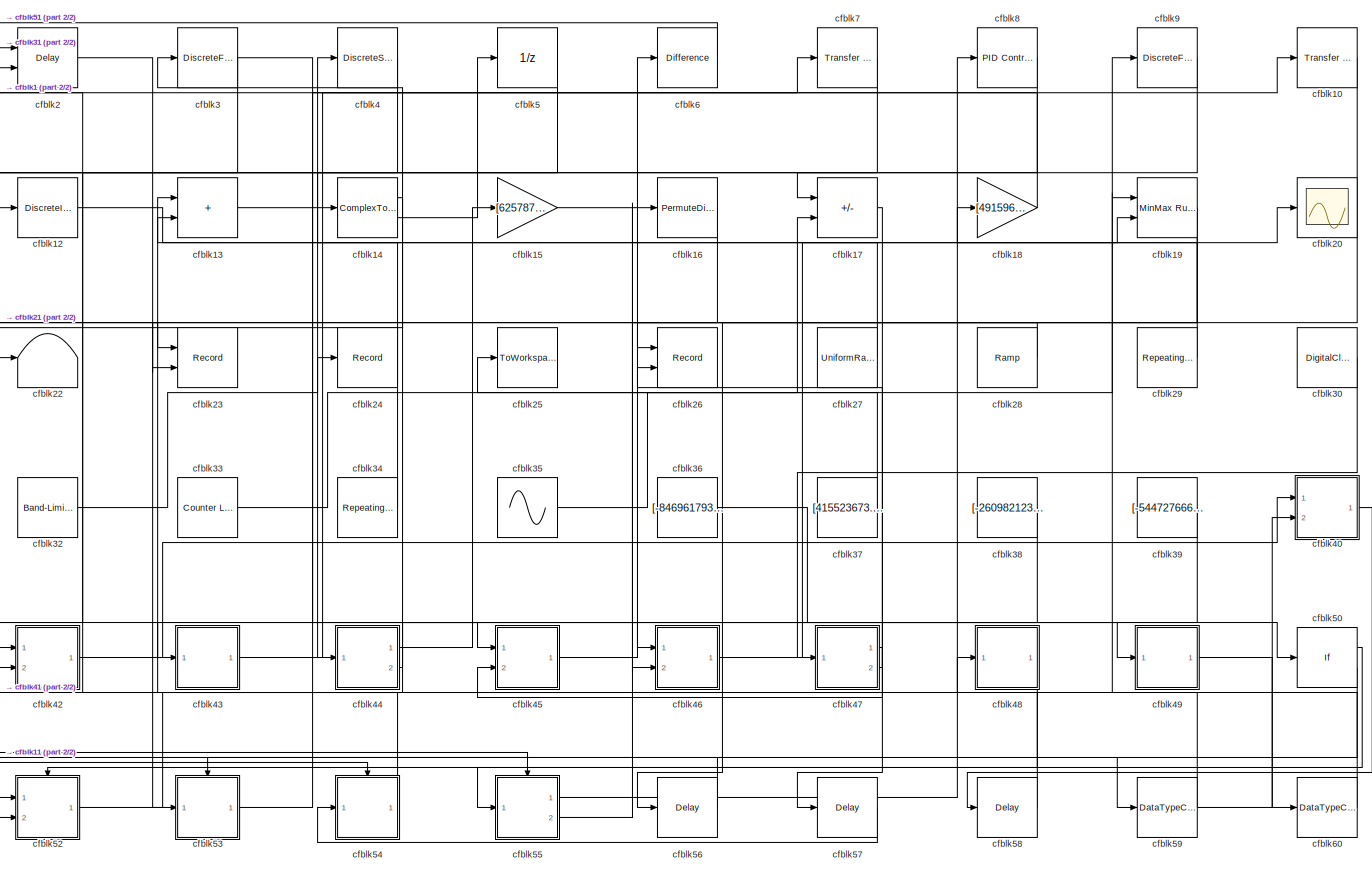
[diagram: root canvas - part 1/2, most of the canvas]
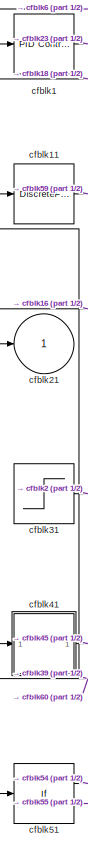
[diagram: root canvas - part 2/2, left side, full height]
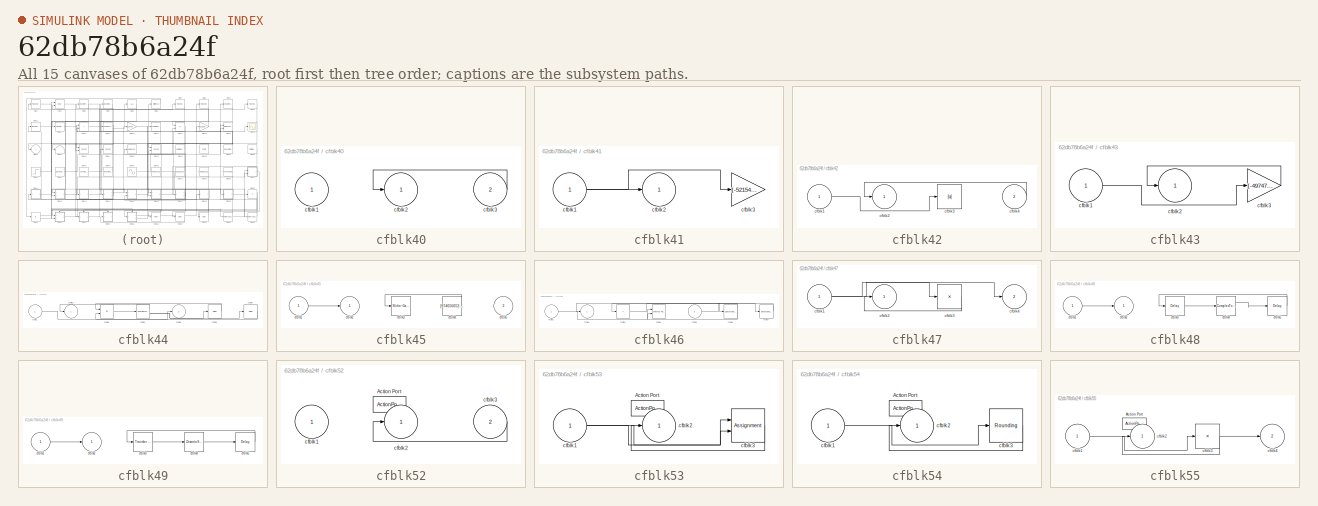
[diagram: thumbnail index - all 15 canvases of the model, root first then tree order]
MODEL slx_62db78b6a24f
KIND model
CONFIG AbsTol = auto
CONFIG EnableMultiTasking = off
CONFIG FixedStep = auto
CONFIG MaxStep = auto
CONFIG MinStep = auto
CONFIG RelTol = 1e-3
CONFIG SampleTimeConstraint = Unconstrained
CONFIG SolverName = VariableStepAuto
CONFIG StartTime = 0.0
CONFIG StopTime = 10.0
BLOCK [Reference] cfblk1  REF=slpidlib/PID Controller
  Ports = [1, 1]
  SourceBlock = slpidlib/PID Controller
  SourceProductBaseCode = SL
  SourceType = PID 1dof
BLOCK [Reference] cfblk10  REF=simulink/Discrete/Transfer Fcn
Lead or Lag
  Ports = [1, 1]
  SourceBlock = simulink/Discrete/Transfer Fcn\nLead or Lag
  SourceProductBaseCode = SL
  SourceType = Lead or Lag Compensator
BLOCK [DiscreteFir] cfblk11
  InputPortMap = u0
  OutputPortMap = o0
  Ports = [1, 1]
  SampleTime = 1
BLOCK [DiscreteIntegrator] cfblk12
  ICPrevOutput = DiscIntNeverNeededParam
  ICPrevScaledInput = DiscIntNeverNeededParam
  InitialConditionSetting = Auto
  Ports = [1, 1]
BLOCK [Sum] cfblk13
  IconShape = rectangular
  Ports = [2, 1]
BLOCK [ComplexToRealImag] cfblk14
  Ports = [1, 2]
BLOCK [Gain] cfblk15
  Gain = [625787040.969806]
BLOCK [PermuteDimensions] cfblk16
BLOCK [Sum] cfblk17
  IconShape = rectangular
  Inputs = +-
  Ports = [2, 1]
BLOCK [Gain] cfblk18
  Gain = [491596973.090959]
BLOCK [Reference] cfblk19  REF=simulink/Math
Operations/MinMax
Running
Resettable
  Ports = [2, 1]
  SourceBlock = simulink/Math\nOperations/MinMax\nRunning\nResettable
  SourceProductBaseCode = SL
  SourceType = MinMax Running Resettable
BLOCK [Delay] cfblk2
  DelayLengthSource = Input port
  InputPortMap = u0,p1
  Ports = [2, 1]
  SampleTime = 1
BLOCK [Scope] cfblk20
  Floating = off
  NumInputPorts = 1
  Ports = [1]
BLOCK [Outport] cfblk21
BLOCK [Terminator] cfblk22
BLOCK [Record] cfblk23
  CompatibilityTag = XY
  FileSettingsInternal = {"entries":[{"content":{"excelSettings":{"content":{},"type":"Streamout.ExcelSettings"}},"type":"Streamout.FileSettingStorage","uuid":"e433c555-253d-4f97-8293-8df6897d1aa0"}],"packageUris":["http://schema.mathworks.com/mf0/streamout_blocks/R2020a"],"version":"1.0"}
  Layout = [1 1]
  Ports = [2]
  SignalsInternal = {"entries":[{"content":{"signals":[{"content":{"blockPath":["sampleModel233/cfblk23"],"channel":[],"dimensions":[1],"domain":"sampleModel233/cfblk23","lineColor":"#a2142f","plots":[1],"port":1,"sid":[""],"signalID":9202,"signalName":"cfblk1"},"type":"RecordBlkView.Signal","uuid":"cc64b0a1-a71a-4532-a88e-b589344ca991"},{"content":{"blockPath":["sampleModel233/cfblk23"],"channel":[],"dimensions":[1]...<+382ch>
  VisualizationBindings = {"xyplotplugin":{"info":[{"series":[{"bindingParametersList":[{"parameter":"X-Axis","signalID":9202,"signalName":"cfblk1"},{"parameter":"Y-Axis","signalID":9206,"signalName":"cfblk10"}],"seriesID":50401}],"subplotID":1}]}}
BLOCK [Record] cfblk24
  FileSettingsInternal = {"entries":[{"content":{"excelSettings":{"content":{},"type":"Streamout.ExcelSettings"}},"type":"Streamout.FileSettingStorage","uuid":"70fc0ae0-eaa1-45bd-bad8-642bd3898e6d"}],"packageUris":["http://schema.mathworks.com/mf0/streamout_blocks/R2020a"],"version":"1.0"}
  Ports = [1]
  SignalsInternal = {"entries":[{"content":{"signals":[{"content":{"blockPath":["sampleModel233/cfblk24"],"channel":[],"dimensions":[1],"domain":"sampleModel233/cfblk24","lineColor":"#139fff","plots":[1],"port":1,"sid":[""],"signalID":9210,"signalName":"cfblk32"},"type":"RecordBlkView.Signal","uuid":"13c7f2aa-63d0-4c70-a1a7-97bc0ddb1392"}]},"type":"RecordBlkView.InputSignals","uuid":"2fd97512-d4e6-46da-8c1d-3fc5dd045...<+97ch>
  VisualizationBindings = {"sparklinesplugin":{"info":[{"bindingParametersList":[],"subplotID":1}]}}
BLOCK [ToWorkspace] cfblk25
  FixptAsFi = on
  MaxDataPoints = inf
  Ports = [1]
  SampleTime = -1
  SaveFormat = Timeseries
  VariableName = fxwrvvi
BLOCK [Record] cfblk26
  CompatibilityTag = XY
  FileSettingsInternal = {"entries":[{"content":{"excelSettings":{"content":{},"type":"Streamout.ExcelSettings"}},"type":"Streamout.FileSettingStorage","uuid":"40fa8434-3017-4f19-81d4-f6b42852243f"}],"packageUris":["http://schema.mathworks.com/mf0/streamout_blocks/R2020a"],"version":"1.0"}
  Layout = [1 1]
  Ports = [2]
  SignalsInternal = {"entries":[{"content":{"signals":[{"content":{"blockPath":["sampleModel233/cfblk26"],"channel":[],"dimensions":[1],"domain":"sampleModel233/cfblk26","lineColor":"#a2142f","plots":[1],"port":1,"sid":[""],"signalID":9194,"signalName":"cfblk28"},"type":"RecordBlkView.Signal","uuid":"12f54125-0b3f-4167-9e98-b6753dddff8c"},{"content":{"blockPath":["sampleModel233/cfblk26"],"channel":[],"dimensions":[1...<+385ch>
  VisualizationBindings = {"xyplotplugin":{"info":[{"series":[{"bindingParametersList":[{"parameter":"X-Axis","signalID":9194,"signalName":"cfblk28"},{"parameter":"Y-Axis","signalID":9198,"signalName":"cfblk47:2"}],"seriesID":20120}],"subplotID":1}]}}
BLOCK [UniformRandomNumber] cfblk27
  Maximum = [7164626324.547557]
  Minimum = [-4695507842.631408]
  SampleTime = 0.1
  Seed = [49075245.000000]
BLOCK [Reference] cfblk28  REF=simulink/Sources/Ramp
  Ports = [0, 1]
  SourceBlock = simulink/Sources/Ramp
  SourceProductBaseCode = SL
  SourceType = Ramp
BLOCK [Reference] cfblk29  REF=simulink/Sources/Repeating
Sequence
Interpolated
  Ports = [0, 1]
  SourceBlock = simulink/Sources/Repeating\nSequence\nInterpolated
  SourceProductBaseCode = SL
  SourceType = Repeating Sequence Interpolated
BLOCK [DiscreteFilter] cfblk3
  InputPortMap = u0
  Ports = [1, 1]
  SampleTime = 1
BLOCK [DigitalClock] cfblk30
BLOCK [Step] cfblk31
  After = [146956045.634263]
  Before = [-923331049.645190]
  SampleTime = 0
  Time = [5.000000]
BLOCK [Reference] cfblk32  REF=simulink/Sources/Band-Limited
White Noise
  Ports = [0, 1]
  SourceBlock = simulink/Sources/Band-Limited\nWhite Noise
  SourceProductBaseCode = SL
  SourceType = Band-Limited White Noise.
BLOCK [Reference] cfblk33  REF=simulink/Sources/Counter
Limited
  Ports = [0, 1]
  SourceBlock = simulink/Sources/Counter\nLimited
  SourceProductBaseCode = SL
  SourceType = Counter Limited
BLOCK [Reference] cfblk34  REF=simulink/Sources/Repeating
Sequence
  Ports = [0, 1]
  SourceBlock = simulink/Sources/Repeating\nSequence
  SourceProductBaseCode = SL
  SourceType = Repeating table
BLOCK [Sin] cfblk35
  Amplitude = [-571808846.141234]
  Bias = [-474539122.793349]
  Ports = [0, 1]
  SampleTime = 0
BLOCK [Constant] cfblk36
  SampleTime = 1
  Value = [-846961793.336997]
BLOCK [Constant] cfblk37
  SampleTime = 1
  Value = [415523673.349520]
BLOCK [Constant] cfblk38
  SampleTime = 1
  Value = [-260982123.016023]
BLOCK [Constant] cfblk39
  SampleTime = 1
  Value = [-544727666.835059]
BLOCK [DiscreteStateSpace] cfblk4
BLOCK [SubSystem] cfblk40
  Ports = [2, 1]
  RequestExecContextInheritance = off
BLOCK [Inport] cfblk40/cfblk1
BLOCK [Outport] cfblk40/cfblk2
BLOCK [Inport] cfblk40/cfblk3
  Port = 2
BLOCK [SubSystem] cfblk41
  Ports = [1, 1]
  RequestExecContextInheritance = off
BLOCK [Inport] cfblk41/cfblk1
BLOCK [Outport] cfblk41/cfblk2
BLOCK [Gain] cfblk41/cfblk3
  Gain = [-52154582.022978]
BLOCK [SubSystem] cfblk42
  Ports = [2, 1]
  RequestExecContextInheritance = off
BLOCK [Inport] cfblk42/cfblk1
BLOCK [Outport] cfblk42/cfblk2
BLOCK [Abs] cfblk42/cfblk3
  SaturateOnIntegerOverflow = off
BLOCK [Inport] cfblk42/cfblk4
  Port = 2
BLOCK [SubSystem] cfblk43
  Ports = [1, 1]
  RequestExecContextInheritance = off
BLOCK [Inport] cfblk43/cfblk1
BLOCK [Outport] cfblk43/cfblk2
BLOCK [Gain] cfblk43/cfblk3
  Gain = [-497471143.273681]
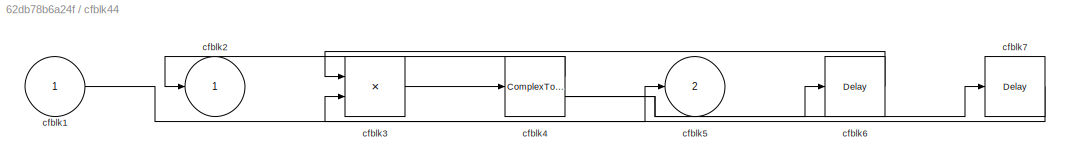
BLOCK [SubSystem] cfblk44
  Ports = [1, 2]
  RequestExecContextInheritance = off
BLOCK [Inport] cfblk44/cfblk1
BLOCK [Outport] cfblk44/cfblk2
BLOCK [Product] cfblk44/cfblk3
  Inputs = **
  Ports = [2, 1]
BLOCK [ComplexToMagnitudeAngle] cfblk44/cfblk4
  Ports = [1, 2]
BLOCK [Outport] cfblk44/cfblk5
  Port = 2
BLOCK [Delay] cfblk44/cfblk6
  InputPortMap = u0
  Ports = [1, 1]
  SampleTime = 1
BLOCK [Delay] cfblk44/cfblk7
  InputPortMap = u0
  Ports = [1, 1]
  SampleTime = 1
BLOCK [SubSystem] cfblk45
  Ports = [2, 1]
  RequestExecContextInheritance = off
BLOCK [Inport] cfblk45/cfblk1
BLOCK [Outport] cfblk45/cfblk2
BLOCK [Reference] cfblk45/cfblk3  REF=simulink/Math
Operations/Slider
Gain
  Ports = [1, 1]
  SourceBlock = simulink/Math\nOperations/Slider\nGain
  SourceProductBaseCode = SL
  SourceType = Slider Gain
BLOCK [Constant] cfblk45/cfblk4
  SampleTime = 1
  Value = [974650653.055199]
BLOCK [Inport] cfblk45/cfblk5
  Port = 2
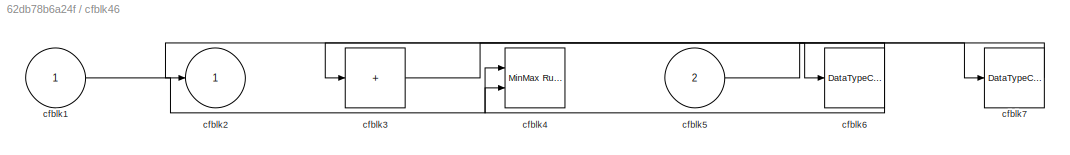
BLOCK [SubSystem] cfblk46
  Ports = [2, 1]
  RequestExecContextInheritance = off
BLOCK [Inport] cfblk46/cfblk1
BLOCK [Outport] cfblk46/cfblk2
BLOCK [Sum] cfblk46/cfblk3
  IconShape = rectangular
  Inputs = +
  Ports = [1, 1]
BLOCK [Reference] cfblk46/cfblk4  REF=simulink/Math
Operations/MinMax
Running
Resettable
  Ports = [2, 1]
  SourceBlock = simulink/Math\nOperations/MinMax\nRunning\nResettable
  SourceProductBaseCode = SL
  SourceType = MinMax Running Resettable
BLOCK [Inport] cfblk46/cfblk5
  Port = 2
BLOCK [DataTypeConversion] cfblk46/cfblk6
  RndMeth = Floor
  SaturateOnIntegerOverflow = off
BLOCK [DataTypeConversion] cfblk46/cfblk7
  RndMeth = Floor
  SaturateOnIntegerOverflow = off
BLOCK [SubSystem] cfblk47
  Ports = [1, 2]
  RequestExecContextInheritance = off
BLOCK [Inport] cfblk47/cfblk1
BLOCK [Outport] cfblk47/cfblk2
BLOCK [Product] cfblk47/cfblk3
  Inputs = *
  Ports = [1, 1]
BLOCK [Outport] cfblk47/cfblk4
  Port = 2
BLOCK [SubSystem] cfblk48
  Ports = [1, 1]
  RequestExecContextInheritance = off
BLOCK [Inport] cfblk48/cfblk1
BLOCK [Outport] cfblk48/cfblk2
BLOCK [Delay] cfblk48/cfblk3
  InputPortMap = u0
  Ports = [1, 1]
  SampleTime = 1
BLOCK [ComplexToMagnitudeAngle] cfblk48/cfblk4
  Ports = [1, 2]
BLOCK [Delay] cfblk48/cfblk5
  InputPortMap = u0
  Ports = [1, 1]
  SampleTime = 1
BLOCK [SubSystem] cfblk49
  Ports = [1, 1]
  RequestExecContextInheritance = off
BLOCK [Inport] cfblk49/cfblk1
BLOCK [Outport] cfblk49/cfblk2
BLOCK [Reference] cfblk49/cfblk3  REF=simulink/Discrete/Transfer Fcn
First Order
  Ports = [1, 1]
  SourceBlock = simulink/Discrete/Transfer Fcn\nFirst Order
  SourceProductBaseCode = SL
  SourceType = First Order Transfer Fcn
BLOCK [DiscreteStateSpace] cfblk49/cfblk4
BLOCK [Delay] cfblk49/cfblk5
  InputPortMap = u0
  Ports = [1, 1]
  SampleTime = 1
BLOCK [UnitDelay] cfblk5
  HasFrameUpgradeWarning = on
BLOCK [If] cfblk50
  IfExpression = u1 >= 0
  Ports = [1, 2]
  SampleTime = 1
BLOCK [If] cfblk51
  IfExpression = u1 >= 0
  Ports = [1, 2]
  SampleTime = 1
BLOCK [SubSystem] cfblk52
  Ports = [2, 1, 0, 0, 0, 0, 0, 1]
  RequestExecContextInheritance = off
  TreatAsAtomicUnit = on
BLOCK [ActionPort] cfblk52/Action Port
  ActionPortLabel = if(u1 >= 0)
BLOCK [Inport] cfblk52/cfblk1
BLOCK [Outport] cfblk52/cfblk2
BLOCK [Inport] cfblk52/cfblk3
  Port = 2
BLOCK [SubSystem] cfblk53
  Ports = [1, 1, 0, 0, 0, 0, 0, 1]
  RequestExecContextInheritance = off
  TreatAsAtomicUnit = on
BLOCK [ActionPort] cfblk53/Action Port
  ActionPortLabel = else
BLOCK [Inport] cfblk53/cfblk1
BLOCK [Outport] cfblk53/cfblk2
BLOCK [Assignment] cfblk53/cfblk3
  DiagnosticForDimensions = Warning
  IndexOptions = Index vector (dialog)
  Indices = 1
  OutputSizes = 1
  Ports = [2, 1]
BLOCK [SubSystem] cfblk54
  Ports = [1, 1, 0, 0, 0, 0, 0, 1]
  RequestExecContextInheritance = off
  TreatAsAtomicUnit = on
BLOCK [ActionPort] cfblk54/Action Port
  ActionPortLabel = if(u1 >= 0)
BLOCK [Inport] cfblk54/cfblk1
BLOCK [Outport] cfblk54/cfblk2
BLOCK [Rounding] cfblk54/cfblk3
BLOCK [SubSystem] cfblk55
  Ports = [1, 2, 0, 0, 0, 0, 0, 1]
  RequestExecContextInheritance = off
  TreatAsAtomicUnit = on
BLOCK [ActionPort] cfblk55/Action Port
  ActionPortLabel = else
BLOCK [Inport] cfblk55/cfblk1
BLOCK [Outport] cfblk55/cfblk2
BLOCK [Product] cfblk55/cfblk3
  Inputs = *
  Ports = [1, 1]
BLOCK [Outport] cfblk55/cfblk4
  Port = 2
BLOCK [Delay] cfblk56
  InputPortMap = u0
  Ports = [1, 1]
  SampleTime = 1
BLOCK [Delay] cfblk57
  InputPortMap = u0
  Ports = [1, 1]
  SampleTime = 1
BLOCK [Delay] cfblk58
  InputPortMap = u0
  Ports = [1, 1]
  SampleTime = 1
BLOCK [DataTypeConversion] cfblk59
  RndMeth = Floor
  SaturateOnIntegerOverflow = off
BLOCK [Reference] cfblk6  REF=simulink/Discrete/Difference
  Ports = [1, 1]
  SourceBlock = simulink/Discrete/Difference
  SourceProductBaseCode = SL
  SourceType = Difference
BLOCK [DataTypeConversion] cfblk60
  RndMeth = Floor
  SaturateOnIntegerOverflow = off
BLOCK [Reference] cfblk7  REF=simulink/Discrete/Transfer Fcn
Real Zero
  Ports = [1, 1]
  SourceBlock = simulink/Discrete/Transfer Fcn\nReal Zero
  SourceProductBaseCode = SL
  SourceType = Transfer Fcn Real Zero
BLOCK [Reference] cfblk8  REF=slpidlib/PID Controller
  Ports = [1, 1]
  SourceBlock = slpidlib/PID Controller
  SourceProductBaseCode = SL
  SourceType = PID 1dof
BLOCK [DiscreteFir] cfblk9
  InputPortMap = u0
  OutputPortMap = o0
  Ports = [1, 1]
  SampleTime = 1
LINE cfblk10:1 -> cfblk23:2
LINE cfblk11:1 -> cfblk59:1
LINE cfblk12:1 -> cfblk19:2
LINE cfblk13:1 -> cfblk4:1
LINE cfblk14:1 -> cfblk22:1
LINE cfblk14:2 -> cfblk5:1
LINE cfblk15:1 -> cfblk49:1
LINE cfblk16:1 -> cfblk21:1
LINE cfblk17:1 -> cfblk57:1
LINE cfblk18:1 -> cfblk1:1
NET cfblk19:1 -> cfblk46:2, cfblk56:1
LINE cfblk1:1 -> cfblk23:1
LINE cfblk27:1 -> cfblk13:2
LINE cfblk28:1 -> cfblk26:1
LINE cfblk29:1 -> cfblk18:1
LINE cfblk2:1 -> cfblk53:1
LINE cfblk30:1 -> cfblk47:1
LINE cfblk31:1 -> cfblk2:1
LINE cfblk32:1 -> cfblk24:1
LINE cfblk33:1 -> cfblk17:2
LINE cfblk34:1 -> cfblk14:1
LINE cfblk35:1 -> cfblk9:1
LINE cfblk36:1 -> cfblk50:1
LINE cfblk37:1 -> cfblk25:1
LINE cfblk38:1 -> cfblk43:1
LINE cfblk39:1 -> cfblk41:1
NET cfblk3:1 -> cfblk42:1, cfblk46:1
LINE cfblk40/cfblk3:1 -> cfblk40/cfblk2:1
LINE cfblk40:1 -> cfblk58:1
NET cfblk41/cfblk1:1 -> cfblk41/cfblk2:1, cfblk41/cfblk3:1
LINE cfblk41:1 -> cfblk45:1
LINE cfblk42/cfblk1:1 -> cfblk42/cfblk3:1
LINE cfblk42/cfblk4:1 -> cfblk42/cfblk2:1
LINE cfblk42:1 -> cfblk40:1
LINE cfblk43/cfblk1:1 -> cfblk43/cfblk3:1
LINE cfblk43/cfblk3:1 -> cfblk43/cfblk2:1
LINE cfblk43:1 -> cfblk10:1
LINE cfblk44/cfblk1:1 -> cfblk44/cfblk5:1
LINE cfblk44/cfblk3:1 -> cfblk44/cfblk4:1
LINE cfblk44/cfblk4:1 -> cfblk44/cfblk2:1
NET cfblk44/cfblk4:2 -> cfblk44/cfblk6:1, cfblk44/cfblk7:1
LINE cfblk44/cfblk6:1 -> cfblk44/cfblk3:1
LINE cfblk44/cfblk7:1 -> cfblk44/cfblk3:2
LINE cfblk44:1 -> cfblk15:1
LINE cfblk44:2 -> cfblk3:1
LINE cfblk45/cfblk1:1 -> cfblk45/cfblk2:1
LINE cfblk45/cfblk4:1 -> cfblk45/cfblk3:1
LINE cfblk45:1 -> cfblk6:1
LINE cfblk46/cfblk1:1 -> cfblk46/cfblk4:1
LINE cfblk46/cfblk3:1 -> cfblk46/cfblk6:1
LINE cfblk46/cfblk5:1 -> cfblk46/cfblk7:1
NET cfblk46/cfblk6:1 -> cfblk46/cfblk2:1, cfblk46/cfblk4:2
LINE cfblk46/cfblk7:1 -> cfblk46/cfblk3:1
LINE cfblk46:1 -> cfblk20:1
NET cfblk47/cfblk1:1 -> cfblk47/cfblk3:1, cfblk47/cfblk4:1
LINE cfblk47/cfblk3:1 -> cfblk47/cfblk2:1
LINE cfblk47:1 -> cfblk45:2
LINE cfblk47:2 -> cfblk26:2
LINE cfblk48/cfblk1:1 -> cfblk48/cfblk2:1
LINE cfblk48/cfblk3:1 -> cfblk48/cfblk4:1
LINE cfblk48/cfblk4:1 -> cfblk48/cfblk5:1
LINE cfblk48/cfblk5:1 -> cfblk48/cfblk3:1
LINE cfblk48:1 -> cfblk55:1
LINE cfblk49/cfblk1:1 -> cfblk49/cfblk2:1
LINE cfblk49/cfblk3:1 -> cfblk49/cfblk4:1
LINE cfblk49/cfblk4:1 -> cfblk49/cfblk5:1
LINE cfblk49/cfblk5:1 -> cfblk49/cfblk3:1
LINE cfblk49:1 -> cfblk60:1
LINE cfblk4:1 -> cfblk42:2
LINE cfblk50:1 -> cfblk52:ifaction
LINE cfblk50:2 -> cfblk53:ifaction
LINE cfblk51:1 -> cfblk54:ifaction
LINE cfblk51:2 -> cfblk55:ifaction
LINE cfblk52/cfblk3:1 -> cfblk52/cfblk2:1
LINE cfblk52:1 -> cfblk48:1
NET cfblk53/cfblk1:1 -> cfblk53/cfblk3:1, cfblk53/cfblk3:2
LINE cfblk53/cfblk3:1 -> cfblk53/cfblk2:1
LINE cfblk53:1 -> cfblk7:1
LINE cfblk54/cfblk1:1 -> cfblk54/cfblk3:1
LINE cfblk54/cfblk3:1 -> cfblk54/cfblk2:1
LINE cfblk54:1 -> cfblk13:1
LINE cfblk55/cfblk1:1 -> cfblk55/cfblk3:1
NET cfblk55/cfblk3:1 -> cfblk55/cfblk2:1, cfblk55/cfblk4:1
LINE cfblk55:1 -> cfblk8:1
LINE cfblk55:2 -> cfblk16:1
LINE cfblk56:1 -> cfblk52:1
LINE cfblk57:1 -> cfblk54:1
LINE cfblk58:1 -> cfblk2:2
NET cfblk59:1 -> cfblk19:1, cfblk40:2
LINE cfblk5:1 -> cfblk12:1
LINE cfblk60:1 -> cfblk11:1
LINE cfblk6:1 -> cfblk51:1
LINE cfblk7:1 -> cfblk44:1
LINE cfblk8:1 -> cfblk17:1
LINE cfblk9:1 -> cfblk52:2
note: NET lines group one-source signal fan-out (src -> all destinations, sorted); 1:1 wires keep LINE
